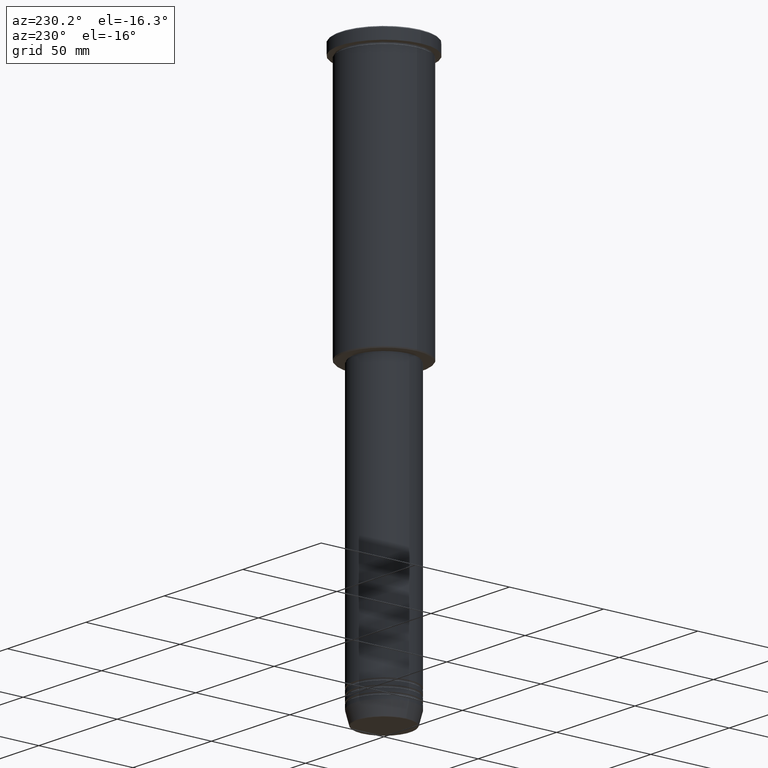
[diagram: clean part render]
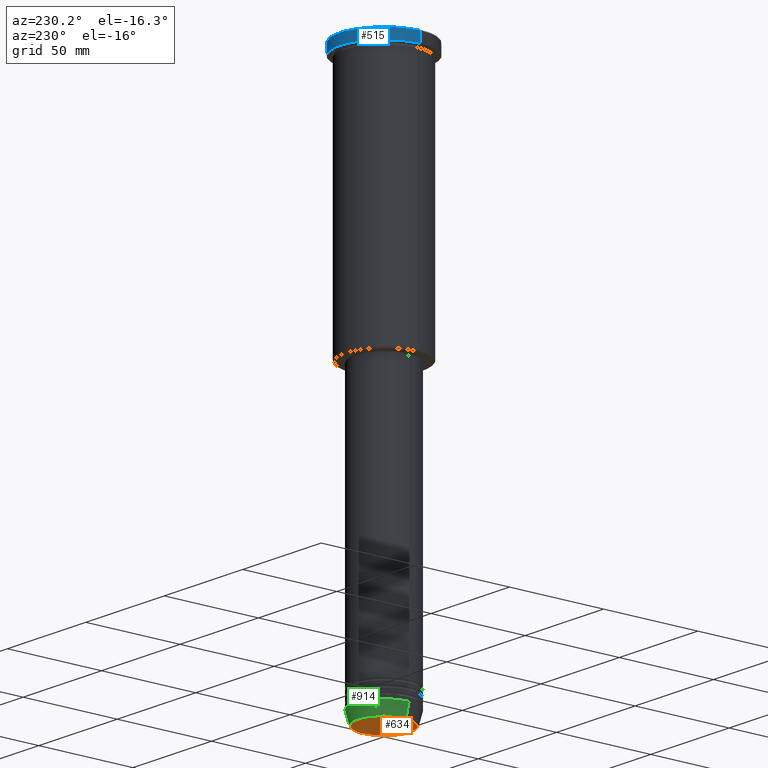
[diagram: same view with three faces highlighted in distinct colors, each labeled with its STEP entity id]
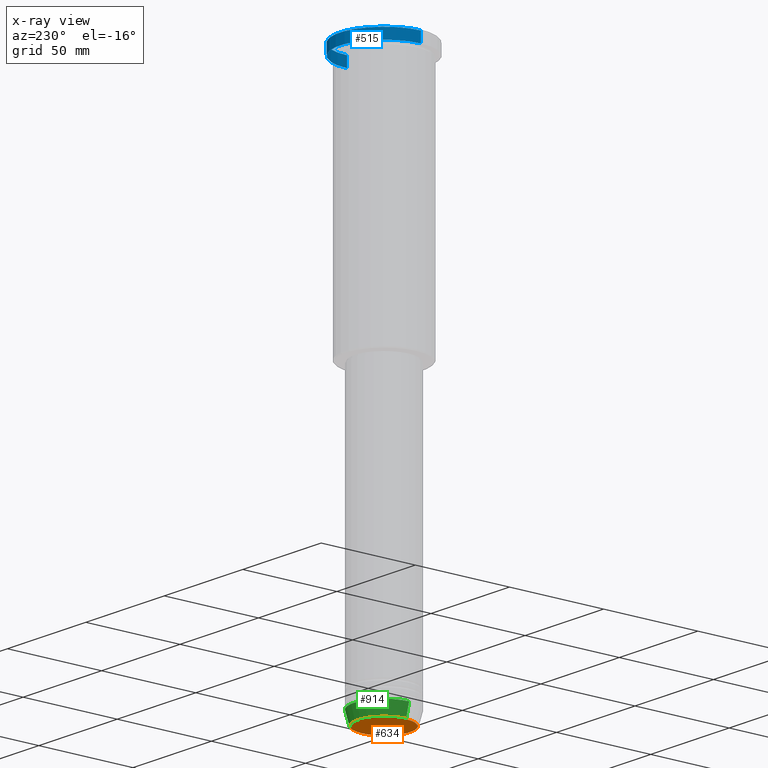
[diagram: x-ray of the same camera — body ghosted, the three highlighted faces saturated]
A machine part, auxiliary view with three faces highlighted in distinct colors.
The next image is the same camera in x-ray (body ghosted, the three faces saturated) — at least one of them is partly hidden behind the body in this view.
Their STEP definitions:

[orange] entity #634 — the highlighted planar face has unit normal (0, -0, 1).
#37 = DIRECTION ( 'NONE',  ( 0.000000000000000000, 0.000000000000000000, -1.000000000000000000 ) ) ;
#42 = ORIENTED_EDGE ( 'NONE', *, *, #498, .T. ) ;
#60 = EDGE_LOOP ( 'NONE', ( #42, #782 ) ) ;
#169 = CARTESIAN_POINT ( 'NONE',  ( 0.000000000000000000, 0.000000000000000000, -291.0000000000000568 ) ) ;
#357 = DIRECTION ( 'NONE',  ( 0.000000000000000000, 0.000000000000000000, -1.000000000000000000 ) ) ;
#474 = AXIS2_PLACEMENT_3D ( 'NONE', #675, #37, #922 ) ;
#498 = EDGE_CURVE ( 'NONE', #1162, #544, #1119, .T. ) ;
#524 = AXIS2_PLACEMENT_3D ( 'NONE', #169, #357, #532 ) ;
#532 = DIRECTION ( 'NONE',  ( 1.000000000000000000, 0.000000000000000000, 0.000000000000000000 ) ) ;
#544 = VERTEX_POINT ( 'NONE', #1171 ) ;
#592 = PLANE ( 'NONE',  #952 ) ;
#634 = ADVANCED_FACE ( 'NONE', ( #1070 ), #592, .F. ) ;
#675 = CARTESIAN_POINT ( 'NONE',  ( 0.000000000000000000, 0.000000000000000000, -291.0000000000000568 ) ) ;
#753 = CARTESIAN_POINT ( 'NONE',  ( 13.74069215899265828, 0.000000000000000000, -291.0000000000000568 ) ) ;
#782 = ORIENTED_EDGE ( 'NONE', *, *, #1111, .T. ) ;
#915 = CIRCLE ( 'NONE', #474, 13.74069215899265828 ) ;
#922 = DIRECTION ( 'NONE',  ( 1.000000000000000000, 0.000000000000000000, 0.000000000000000000 ) ) ;
#952 = AXIS2_PLACEMENT_3D ( 'NONE', #1019, #1107, #1040 ) ;
#1019 = CARTESIAN_POINT ( 'NONE',  ( 0.000000000000000000, 0.000000000000000000, -291.0000000000000568 ) ) ;
#1040 = DIRECTION ( 'NONE',  ( 1.000000000000000000, 0.000000000000000000, 0.000000000000000000 ) ) ;
#1070 = FACE_OUTER_BOUND ( 'NONE', #60, .T. ) ;
#1107 = DIRECTION ( 'NONE',  ( 0.000000000000000000, -0.000000000000000000, 1.000000000000000000 ) ) ;
#1111 = EDGE_CURVE ( 'NONE', #544, #1162, #915, .T. ) ;
#1119 = CIRCLE ( 'NONE', #524, 13.74069215899265828 ) ;
#1162 = VERTEX_POINT ( 'NONE', #753 ) ;
#1171 = CARTESIAN_POINT ( 'NONE',  ( -13.74069215899265828, 1.712322416342415986E-15, -291.0000000000000568 ) ) ;

[blue] entity #515 — the highlighted cylindrical surface (partial cylindrical patch) has radius 23.5 mm, axis along (-0, -0, 1).
#67 = DIRECTION ( 'NONE',  ( -0.000000000000000000, -0.000000000000000000, 1.000000000000000000 ) ) ;
#107 = VECTOR ( 'NONE', #194, 1000.000000000000000 ) ;
#179 = EDGE_CURVE ( 'NONE', #1043, #1135, #553, .T. ) ;
#194 = DIRECTION ( 'NONE',  ( -0.000000000000000000, -0.000000000000000000, 1.000000000000000000 ) ) ;
#209 = CARTESIAN_POINT ( 'NONE',  ( 23.50000000000000000, 0.000000000000000000, 0.000000000000000000 ) ) ;
#217 = ORIENTED_EDGE ( 'NONE', *, *, #266, .T. ) ;
#256 = DIRECTION ( 'NONE',  ( -0.000000000000000000, -0.000000000000000000, 1.000000000000000000 ) ) ;
#265 = CARTESIAN_POINT ( 'NONE',  ( -23.50000000000000000, 2.877919977996280320E-15, -5.999999999999994671 ) ) ;
#266 = EDGE_CURVE ( 'NONE', #990, #415, #483, .T. ) ;
#290 = AXIS2_PLACEMENT_3D ( 'NONE', #843, #508, #1110 ) ;
#415 = VERTEX_POINT ( 'NONE', #419 ) ;
#419 = CARTESIAN_POINT ( 'NONE',  ( -23.50000000000000000, 2.877919977996280320E-15, -0.5000000000000281997 ) ) ;
#441 = DIRECTION ( 'NONE',  ( 1.000000000000000000, 0.000000000000000000, 0.000000000000000000 ) ) ;
#483 = LINE ( 'NONE', #740, #107 ) ;
#508 = DIRECTION ( 'NONE',  ( 0.000000000000000000, 0.000000000000000000, -1.000000000000000000 ) ) ;
#512 = ORIENTED_EDGE ( 'NONE', *, *, #832, .T. ) ;
#515 = ADVANCED_FACE ( 'NONE', ( #535 ), #899, .T. ) ;
#535 = FACE_OUTER_BOUND ( 'NONE', #694, .T. ) ;
#543 = CARTESIAN_POINT ( 'NONE',  ( 0.000000000000000000, 0.000000000000000000, 0.000000000000000000 ) ) ;
#553 = LINE ( 'NONE', #209, #1145 ) ;
#580 = CIRCLE ( 'NONE', #1027, 23.50000000000000000 ) ;
#599 = CARTESIAN_POINT ( 'NONE',  ( 0.000000000000000000, 0.000000000000000000, -5.999999999999994671 ) ) ;
#658 = EDGE_CURVE ( 'NONE', #415, #1135, #712, .T. ) ;
#666 = CARTESIAN_POINT ( 'NONE',  ( 23.50000000000000000, 0.000000000000000000, -0.5000000000000281997 ) ) ;
#694 = EDGE_LOOP ( 'NONE', ( #512, #217, #1133, #1125 ) ) ;
#712 = CIRCLE ( 'NONE', #290, 23.50000000000000000 ) ;
#740 = CARTESIAN_POINT ( 'NONE',  ( -23.50000000000000000, 2.877919977996280320E-15, 0.000000000000000000 ) ) ;
#793 = DIRECTION ( 'NONE',  ( 1.000000000000000000, 0.000000000000000000, 0.000000000000000000 ) ) ;
#832 = EDGE_CURVE ( 'NONE', #1043, #990, #580, .T. ) ;
#843 = CARTESIAN_POINT ( 'NONE',  ( 0.000000000000000000, 0.000000000000000000, -0.5000000000000281997 ) ) ;
#845 = DIRECTION ( 'NONE',  ( -0.000000000000000000, -0.000000000000000000, 1.000000000000000000 ) ) ;
#899 = CYLINDRICAL_SURFACE ( 'NONE', #1025, 23.50000000000000000 ) ;
#990 = VERTEX_POINT ( 'NONE', #265 ) ;
#997 = CARTESIAN_POINT ( 'NONE',  ( 23.50000000000000000, 0.000000000000000000, -5.999999999999994671 ) ) ;
#1025 = AXIS2_PLACEMENT_3D ( 'NONE', #543, #67, #441 ) ;
#1027 = AXIS2_PLACEMENT_3D ( 'NONE', #599, #256, #793 ) ;
#1043 = VERTEX_POINT ( 'NONE', #997 ) ;
#1110 = DIRECTION ( 'NONE',  ( 1.000000000000000000, 0.000000000000000000, 0.000000000000000000 ) ) ;
#1125 = ORIENTED_EDGE ( 'NONE', *, *, #179, .F. ) ;
#1133 = ORIENTED_EDGE ( 'NONE', *, *, #658, .T. ) ;
#1135 = VERTEX_POINT ( 'NONE', #666 ) ;
#1145 = VECTOR ( 'NONE', #845, 1000.000000000000000 ) ;

[green] entity #914 — the highlighted conical surface has half-angle 15 deg.
#26 = CARTESIAN_POINT ( 'NONE',  ( -16.00000000000000000, 1.959434878635765131E-15, -284.0000000000000568 ) ) ;
#35 = ORIENTED_EDGE ( 'NONE', *, *, #102, .F. ) ;
#102 = EDGE_CURVE ( 'NONE', #1118, #613, #442, .T. ) ;
#106 = VERTEX_POINT ( 'NONE', #737 ) ;
#122 = DIRECTION ( 'NONE',  ( 1.000000000000000000, 0.000000000000000000, 0.000000000000000000 ) ) ;
#128 = VECTOR ( 'NONE', #912, 1000.000000000000000 ) ;
#193 = AXIS2_PLACEMENT_3D ( 'NONE', #696, #241, #649 ) ;
#241 = DIRECTION ( 'NONE',  ( -0.000000000000000000, -0.000000000000000000, 1.000000000000000000 ) ) ;
#305 = ORIENTED_EDGE ( 'NONE', *, *, #1093, .F. ) ;
#306 = DIRECTION ( 'NONE',  ( -0.000000000000000000, -0.000000000000000000, 1.000000000000000000 ) ) ;
#314 = DIRECTION ( 'NONE',  ( 1.000000000000000000, 0.000000000000000000, 0.000000000000000000 ) ) ;
#362 = CARTESIAN_POINT ( 'NONE',  ( 16.00000000000000000, 0.000000000000000000, -284.0000000000000568 ) ) ;
#409 = EDGE_CURVE ( 'NONE', #1118, #106, #884, .T. ) ;
#442 = LINE ( 'NONE', #362, #128 ) ;
#471 = CARTESIAN_POINT ( 'NONE',  ( 14.22365507213718772, 0.000000000000000000, -290.6294095225512706 ) ) ;
#479 = CARTESIAN_POINT ( 'NONE',  ( -16.00000000000000000, 1.959434878635765131E-15, -284.0000000000000568 ) ) ;
#503 = CONICAL_SURFACE ( 'NONE', #193, 16.00000000000000000, 0.2617993877991500740 ) ;
#514 = DIRECTION ( 'NONE',  ( -0.000000000000000000, -0.000000000000000000, 1.000000000000000000 ) ) ;
#613 = VERTEX_POINT ( 'NONE', #727 ) ;
#631 = ORIENTED_EDGE ( 'NONE', *, *, #409, .T. ) ;
#645 = VERTEX_POINT ( 'NONE', #26 ) ;
#649 = DIRECTION ( 'NONE',  ( 1.000000000000000000, 0.000000000000000000, 0.000000000000000000 ) ) ;
#670 = AXIS2_PLACEMENT_3D ( 'NONE', #945, #514, #122 ) ;
#696 = CARTESIAN_POINT ( 'NONE',  ( 0.000000000000000000, 0.000000000000000000, -284.0000000000000568 ) ) ;
#727 = CARTESIAN_POINT ( 'NONE',  ( 16.00000000000000000, 0.000000000000000000, -284.0000000000000568 ) ) ;
#737 = CARTESIAN_POINT ( 'NONE',  ( -14.22365507213718772, 1.850665122131323337E-15, -290.6294095225512706 ) ) ;
#757 = DIRECTION ( 'NONE',  ( -0.2588190451025213501, 3.169619151431772337E-17, 0.9659258262890680902 ) ) ;
#770 = AXIS2_PLACEMENT_3D ( 'NONE', #1103, #306, #314 ) ;
#788 = FACE_OUTER_BOUND ( 'NONE', #1021, .T. ) ;
#859 = LINE ( 'NONE', #479, #1172 ) ;
#884 = CIRCLE ( 'NONE', #670, 14.22365507213718772 ) ;
#912 = DIRECTION ( 'NONE',  ( 0.2588190451025213501, 0.000000000000000000, 0.9659258262890680902 ) ) ;
#914 = ADVANCED_FACE ( 'NONE', ( #788 ), #503, .T. ) ;
#945 = CARTESIAN_POINT ( 'NONE',  ( 0.000000000000000000, 0.000000000000000000, -290.6294095225512706 ) ) ;
#948 = CIRCLE ( 'NONE', #770, 16.00000000000000000 ) ;
#1021 = EDGE_LOOP ( 'NONE', ( #631, #1130, #305, #35 ) ) ;
#1091 = EDGE_CURVE ( 'NONE', #106, #645, #859, .T. ) ;
#1093 = EDGE_CURVE ( 'NONE', #613, #645, #948, .T. ) ;
#1103 = CARTESIAN_POINT ( 'NONE',  ( 0.000000000000000000, 0.000000000000000000, -284.0000000000000568 ) ) ;
#1118 = VERTEX_POINT ( 'NONE', #471 ) ;
#1130 = ORIENTED_EDGE ( 'NONE', *, *, #1091, .T. ) ;
#1172 = VECTOR ( 'NONE', #757, 1000.000000000000000 ) ;